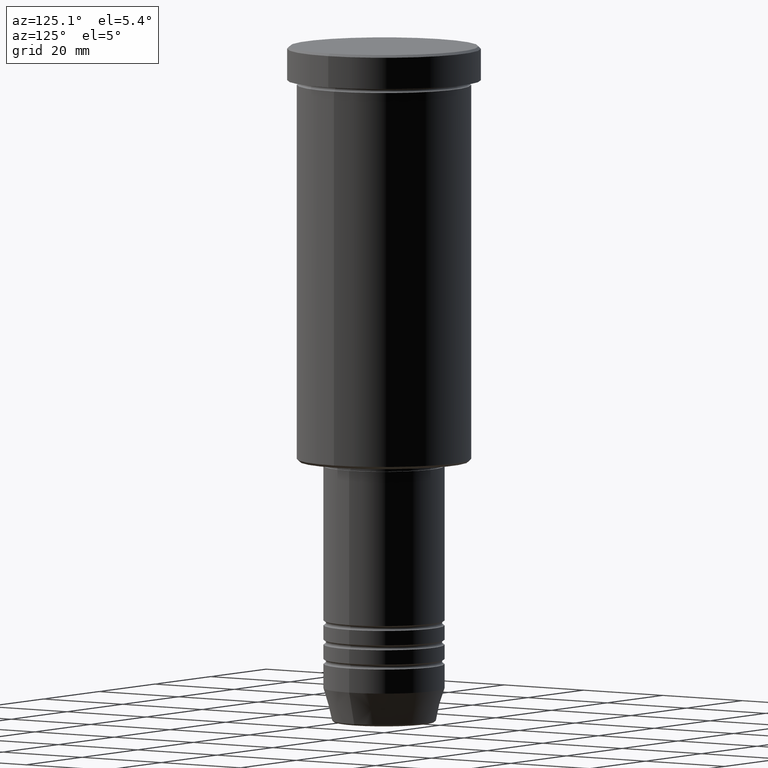
[diagram: clean part render]
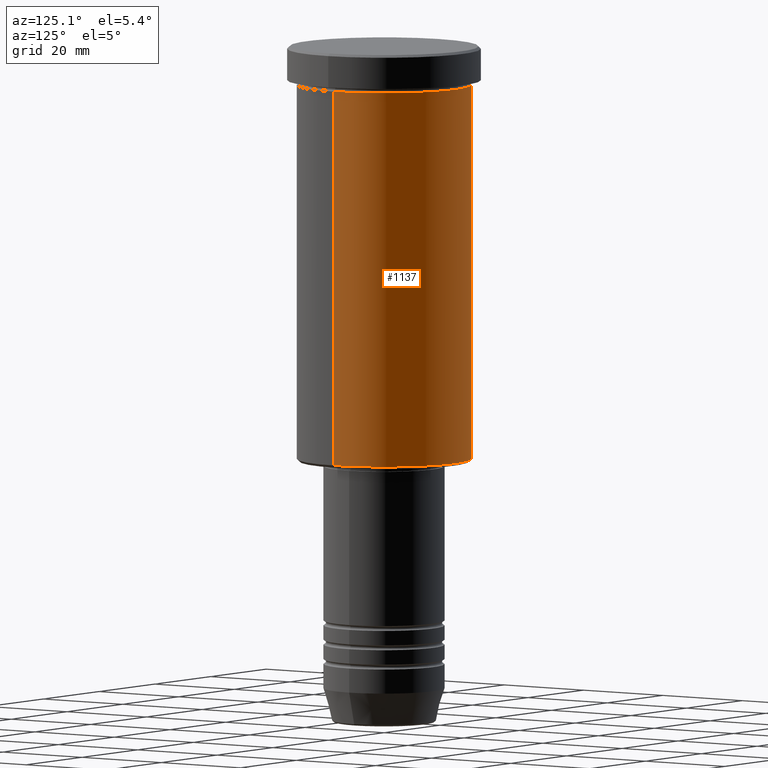
[diagram: same view with one face highlighted and labeled with its STEP entity id]
A machine part, auxiliary view. The second image highlights one B-rep face of the part: STEP entity #1137.
In plain terms, the highlighted cylindrical surface (partial cylindrical patch) has radius 18 mm, axis along (-0, -0, 1).
Its self-contained STEP definition (entity closure, byte-faithful):
#36 = AXIS2_PLACEMENT_3D ( 'NONE', #706, #1160, #66 ) ;
#50 = ORIENTED_EDGE ( 'NONE', *, *, #381, .F. ) ;
#53 = AXIS2_PLACEMENT_3D ( 'NONE', #575, #1172, #1098 ) ;
#66 = DIRECTION ( 'NONE',  ( 1.000000000000000000, 0.000000000000000000, 0.000000000000000000 ) ) ;
#85 = CARTESIAN_POINT ( 'NONE',  ( 18.00000000000000000, 0.000000000000000000, -85.50000000000000000 ) ) ;
#145 = VERTEX_POINT ( 'NONE', #85 ) ;
#146 = CARTESIAN_POINT ( 'NONE',  ( 0.000000000000000000, 0.000000000000000000, -85.50000000000000000 ) ) ;
#179 = CARTESIAN_POINT ( 'NONE',  ( -18.00000000000000000, 2.204364238465235428E-15, 0.000000000000000000 ) ) ;
#191 = EDGE_LOOP ( 'NONE', ( #303, #196, #50, #583 ) ) ;
#196 = ORIENTED_EDGE ( 'NONE', *, *, #478, .T. ) ;
#202 = CARTESIAN_POINT ( 'NONE',  ( -18.00000000000000000, 2.204364238465235428E-15, -7.999999999999996447 ) ) ;
#251 = VECTOR ( 'NONE', #346, 1000.000000000000000 ) ;
#260 = CARTESIAN_POINT ( 'NONE',  ( -18.00000000000000000, 2.204364238465235428E-15, -85.50000000000000000 ) ) ;
#299 = CIRCLE ( 'NONE', #53, 18.00000000000000000 ) ;
#303 = ORIENTED_EDGE ( 'NONE', *, *, #546, .T. ) ;
#346 = DIRECTION ( 'NONE',  ( -0.000000000000000000, -0.000000000000000000, 1.000000000000000000 ) ) ;
#358 = CARTESIAN_POINT ( 'NONE',  ( 18.00000000000000000, 0.000000000000000000, -7.999999999999996447 ) ) ;
#381 = EDGE_CURVE ( 'NONE', #672, #958, #299, .T. ) ;
#478 = EDGE_CURVE ( 'NONE', #1154, #958, #905, .T. ) ;
#514 = CYLINDRICAL_SURFACE ( 'NONE', #36, 18.00000000000000000 ) ;
#546 = EDGE_CURVE ( 'NONE', #145, #1154, #1123, .T. ) ;
#575 = CARTESIAN_POINT ( 'NONE',  ( 0.000000000000000000, 0.000000000000000000, -7.999999999999996447 ) ) ;
#583 = ORIENTED_EDGE ( 'NONE', *, *, #1176, .F. ) ;
#647 = AXIS2_PLACEMENT_3D ( 'NONE', #146, #1070, #791 ) ;
#672 = VERTEX_POINT ( 'NONE', #358 ) ;
#700 = LINE ( 'NONE', #994, #954 ) ;
#706 = CARTESIAN_POINT ( 'NONE',  ( 0.000000000000000000, 0.000000000000000000, 0.000000000000000000 ) ) ;
#789 = DIRECTION ( 'NONE',  ( -0.000000000000000000, -0.000000000000000000, 1.000000000000000000 ) ) ;
#791 = DIRECTION ( 'NONE',  ( -1.000000000000000000, 0.000000000000000000, 0.000000000000000000 ) ) ;
#899 = FACE_OUTER_BOUND ( 'NONE', #191, .T. ) ;
#905 = LINE ( 'NONE', #179, #251 ) ;
#954 = VECTOR ( 'NONE', #789, 1000.000000000000000 ) ;
#958 = VERTEX_POINT ( 'NONE', #202 ) ;
#994 = CARTESIAN_POINT ( 'NONE',  ( 18.00000000000000000, 0.000000000000000000, 0.000000000000000000 ) ) ;
#1070 = DIRECTION ( 'NONE',  ( -0.000000000000000000, -0.000000000000000000, 1.000000000000000000 ) ) ;
#1098 = DIRECTION ( 'NONE',  ( 1.000000000000000000, 0.000000000000000000, 0.000000000000000000 ) ) ;
#1123 = CIRCLE ( 'NONE', #647, 18.00000000000000000 ) ;
#1137 = ADVANCED_FACE ( 'NONE', ( #899 ), #514, .T. ) ;
#1154 = VERTEX_POINT ( 'NONE', #260 ) ;
#1160 = DIRECTION ( 'NONE',  ( -0.000000000000000000, -0.000000000000000000, 1.000000000000000000 ) ) ;
#1172 = DIRECTION ( 'NONE',  ( -0.000000000000000000, -0.000000000000000000, 1.000000000000000000 ) ) ;
#1176 = EDGE_CURVE ( 'NONE', #145, #672, #700, .T. ) ;